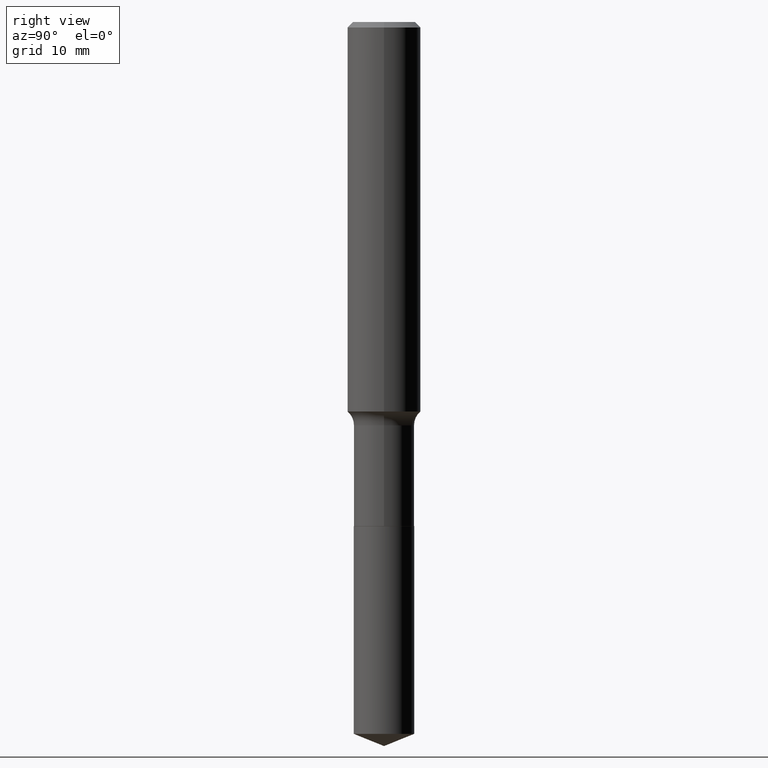
[diagram: clean part render]
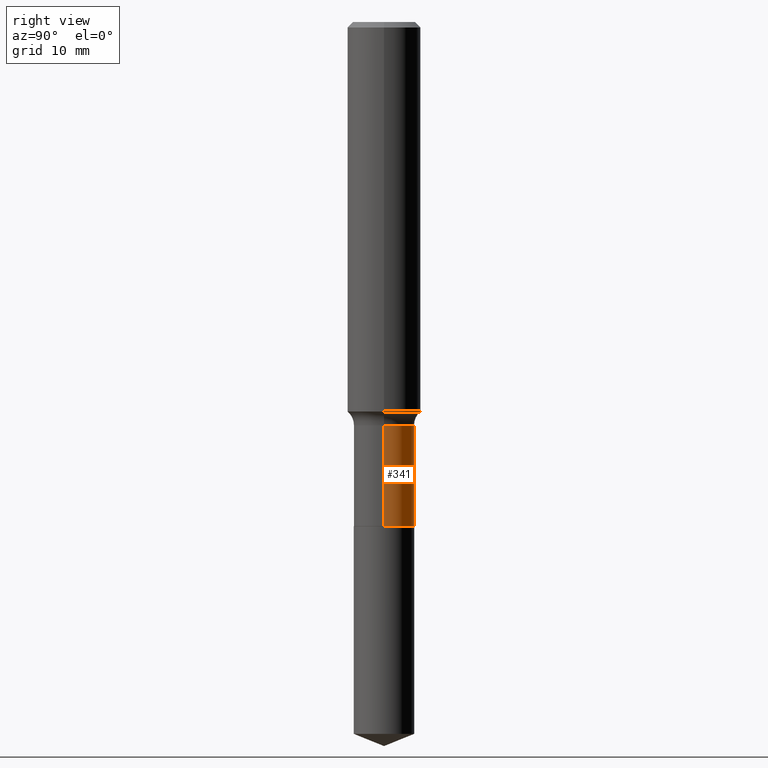
[diagram: same view with one face highlighted and labeled with its STEP entity id]
A machine part, right view. The second image highlights one B-rep face of the part: STEP entity #341.
In plain terms, the highlighted cylindrical surface (edge-blend (fillet) strip) has radius 3.2995 mm, axis along (-0, 0, 1).
Its self-contained STEP definition (entity closure, byte-faithful):
#14 = DIRECTION ( 'NONE',  ( -2.445468806185136597E-29, 3.491481338843145583E-15, 1.000000000000000000 ) ) ;
#30 = EDGE_CURVE ( 'NONE', #394, #101, #288, .T. ) ;
#39 = VECTOR ( 'NONE', #58, 39.37007874015748143 ) ;
#58 = DIRECTION ( 'NONE',  ( -2.445468806185136877E-29, 3.491481338843145188E-15, 1.000000000000000000 ) ) ;
#83 = CARTESIAN_POINT ( 'NONE',  ( 4.237019253596368185E-29, -6.049340567679635558E-15, -1.732600000000000362 ) ) ;
#91 = DIRECTION ( 'NONE',  ( -2.445468806185136597E-29, 3.491481338843145583E-15, 1.000000000000000000 ) ) ;
#101 = VERTEX_POINT ( 'NONE', #348 ) ;
#123 = CARTESIAN_POINT ( 'NONE',  ( 0.000000000000000000, 0.000000000000000000, 0.000000000000000000 ) ) ;
#140 = CIRCLE ( 'NONE', #331, 0.1298999999999999322 ) ;
#173 = VERTEX_POINT ( 'NONE', #228 ) ;
#184 = LINE ( 'NONE', #218, #275 ) ;
#188 = ORIENTED_EDGE ( 'NONE', *, *, #264, .F. ) ;
#210 = CYLINDRICAL_SURFACE ( 'NONE', #212, 0.1298999999999999599 ) ;
#212 = AXIS2_PLACEMENT_3D ( 'NONE', #123, #91, #285 ) ;
#218 = CARTESIAN_POINT ( 'NONE',  ( 0.1298999999999999599, -9.070868518314457948E-16, 6.334153631758918028E-30 ) ) ;
#226 = VERTEX_POINT ( 'NONE', #427 ) ;
#228 = CARTESIAN_POINT ( 'NONE',  ( 0.1298999999999999877, -8.465445654159088005E-15, -2.164800000000000058 ) ) ;
#235 = ORIENTED_EDGE ( 'NONE', *, *, #30, .T. ) ;
#254 = DIRECTION ( 'NONE',  ( 1.000000000000000000, -6.982962677686268288E-15, 0.000000000000000000 ) ) ;
#264 = EDGE_CURVE ( 'NONE', #226, #101, #140, .T. ) ;
#275 = VECTOR ( 'NONE', #340, 39.37007874015748143 ) ;
#285 = DIRECTION ( 'NONE',  ( 1.000000000000000000, -6.982962677686266711E-15, 4.876176775795935232E-29 ) ) ;
#288 = LINE ( 'NONE', #336, #39 ) ;
#290 = CIRCLE ( 'NONE', #294, 0.1298999999999999877 ) ;
#294 = AXIS2_PLACEMENT_3D ( 'NONE', #337, #484, #254 ) ;
#297 = EDGE_LOOP ( 'NONE', ( #346, #235, #188, #461 ) ) ;
#326 = FACE_OUTER_BOUND ( 'NONE', #297, .T. ) ;
#331 = AXIS2_PLACEMENT_3D ( 'NONE', #83, #14, #363 ) ;
#336 = CARTESIAN_POINT ( 'NONE',  ( -0.1298999999999999599, 9.229950137523698568E-16, -6.389696682241120408E-30 ) ) ;
#337 = CARTESIAN_POINT ( 'NONE',  ( 5.293950871629583880E-29, -7.558358802327641618E-15, -2.164800000000000058 ) ) ;
#340 = DIRECTION ( 'NONE',  ( -2.445468806185136877E-29, 3.491481338843145188E-15, 1.000000000000000000 ) ) ;
#341 = ADVANCED_FACE ( 'NONE', ( #326 ), #210, .T. ) ;
#346 = ORIENTED_EDGE ( 'NONE', *, *, #473, .T. ) ;
#348 = CARTESIAN_POINT ( 'NONE',  ( -0.1298999999999999322, -5.880854671251268337E-15, -1.732600000000000362 ) ) ;
#363 = DIRECTION ( 'NONE',  ( 1.000000000000000000, -6.982962677686263555E-15, 0.000000000000000000 ) ) ;
#394 = VERTEX_POINT ( 'NONE', #414 ) ;
#414 = CARTESIAN_POINT ( 'NONE',  ( -0.1298999999999999877, -5.880854671251267548E-15, -2.164800000000000058 ) ) ;
#427 = CARTESIAN_POINT ( 'NONE',  ( 0.1298999999999999322, -6.956427419511080367E-15, -1.732600000000000362 ) ) ;
#461 = ORIENTED_EDGE ( 'NONE', *, *, #485, .F. ) ;
#473 = EDGE_CURVE ( 'NONE', #173, #394, #290, .T. ) ;
#484 = DIRECTION ( 'NONE',  ( -2.445468806185136597E-29, 3.491481338843145583E-15, 1.000000000000000000 ) ) ;
#485 = EDGE_CURVE ( 'NONE', #173, #226, #184, .T. ) ;